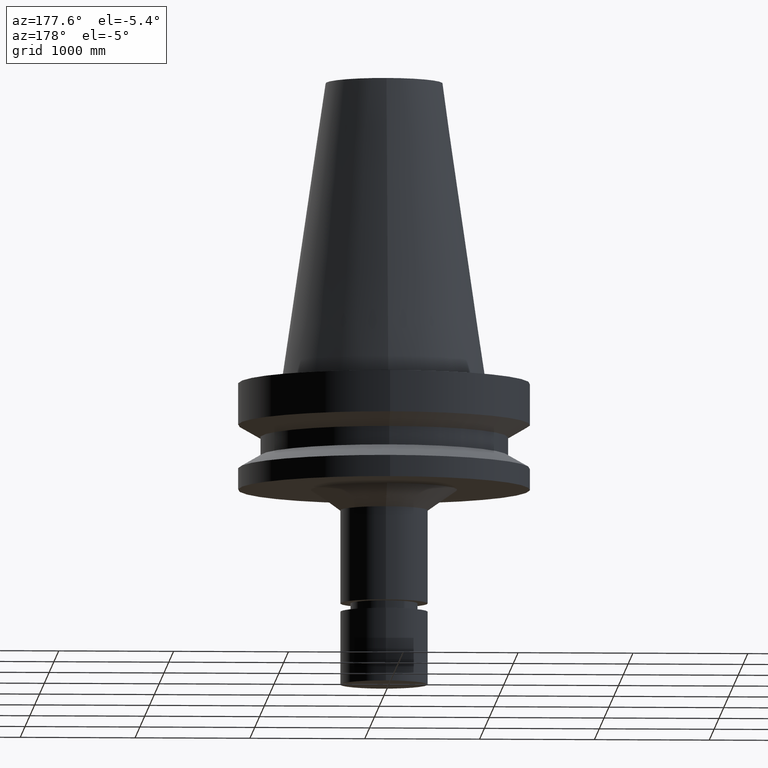
[diagram: clean part render]
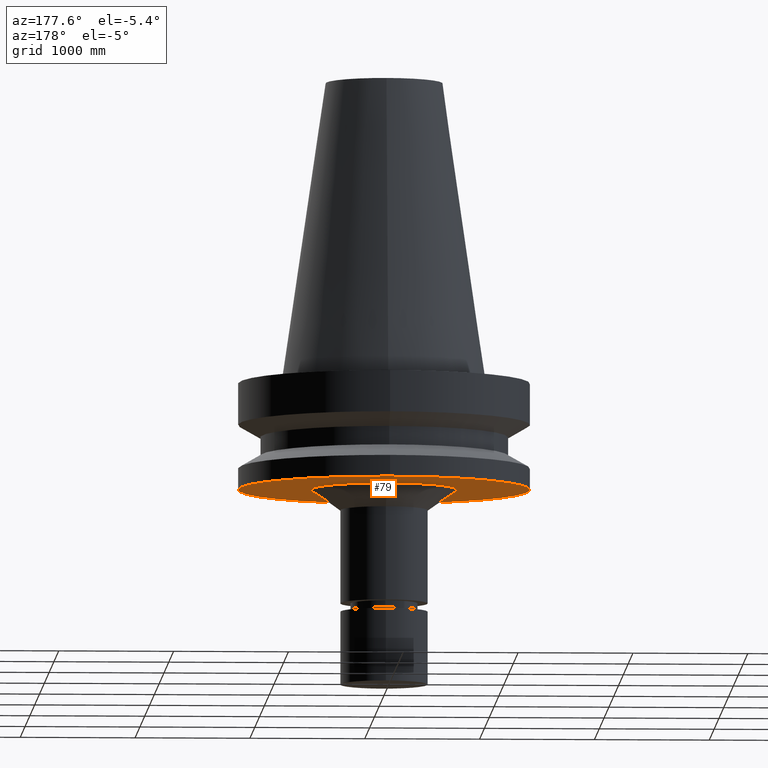
[diagram: same view with one face highlighted and labeled with its STEP entity id]
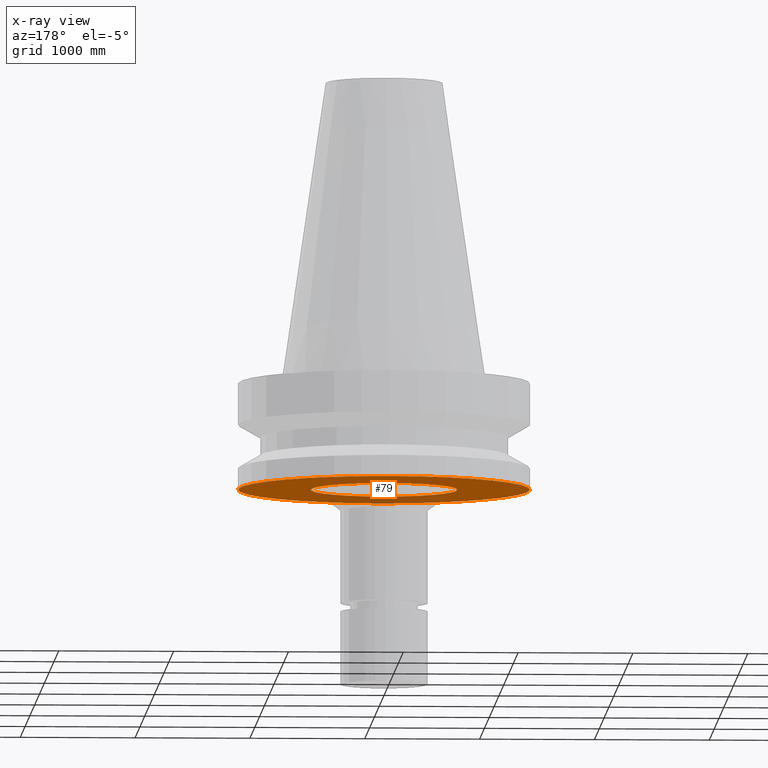
[diagram: x-ray of the same camera — body ghosted, the highlighted face saturated]
A machine part, auxiliary view. The second image highlights one B-rep face of the part: STEP entity #79.
The next image is the same camera in x-ray: the body ghosted, the highlighted face saturated — about 18% of this face is hidden behind the body in this view.
In plain terms, the highlighted planar face has unit normal (0, 0, -1).
Its self-contained STEP definition (entity closure, byte-faithful):
#79=ADVANCED_FACE('Unnamed[1]',(#206,#207),#208,.T.);
#97=EDGE_CURVE('Unnamed[1]',#236,#236,#237,.T.);
#167=EDGE_CURVE('Unnamed[1]',#344,#344,#345,.T.);
#206=FACE_OUTER_BOUND('',#383,.T.);
#207=FACE_BOUND('',#384,.T.);
#208=PLANE('',#385);
#236=VERTEX_POINT('',#420);
#237=CIRCLE('',#421,25.1435726714495);
#344=VERTEX_POINT('',#555);
#345=CIRCLE('',#556,50.0);
#383=EDGE_LOOP('',(#586));
#384=EDGE_LOOP('',(#587));
#385=AXIS2_PLACEMENT_3D('',#588,#589,#590);
#420=CARTESIAN_POINT('',(2.32682891837996E-015,25.1435726714495,-37.9999999999999));
#421=AXIS2_PLACEMENT_3D('',#621,#622,#623);
#555=CARTESIAN_POINT('',(2.32682891837996E-015,50.0,-37.9999999999998));
#556=AXIS2_PLACEMENT_3D('',#740,#741,#742);
#586=ORIENTED_EDGE('',*,*,#167,.F.);
#587=ORIENTED_EDGE('',*,*,#97,.T.);
#588=CARTESIAN_POINT('',(2.32682891837996E-015,37.5717863357248,-37.9999999999998));
#589=DIRECTION('',(6.12323399573677E-017,2.98105222497178E-015,-1.0));
#590=DIRECTION('',(1.87363956000909E-031,-1.0,-2.98105222497178E-015));
#621=CARTESIAN_POINT('',(2.32682891837996E-015,1.29908225877178E-014,-37.9999999999998));
#622=DIRECTION('',(-6.12323399573677E-017,1.40684069939017E-019,1.0));
#623=DIRECTION('',(-4.81853831597193E-033,1.0,-1.40684069939017E-019));
#740=CARTESIAN_POINT('',(2.32682891837996E-015,1.29908225877178E-014,-37.9999999999998));
#741=DIRECTION('',(-6.12323399573677E-017,1.40684069939013E-019,1.0));
#742=DIRECTION('',(-4.81853831597193E-033,1.0,-1.40684069939013E-019));